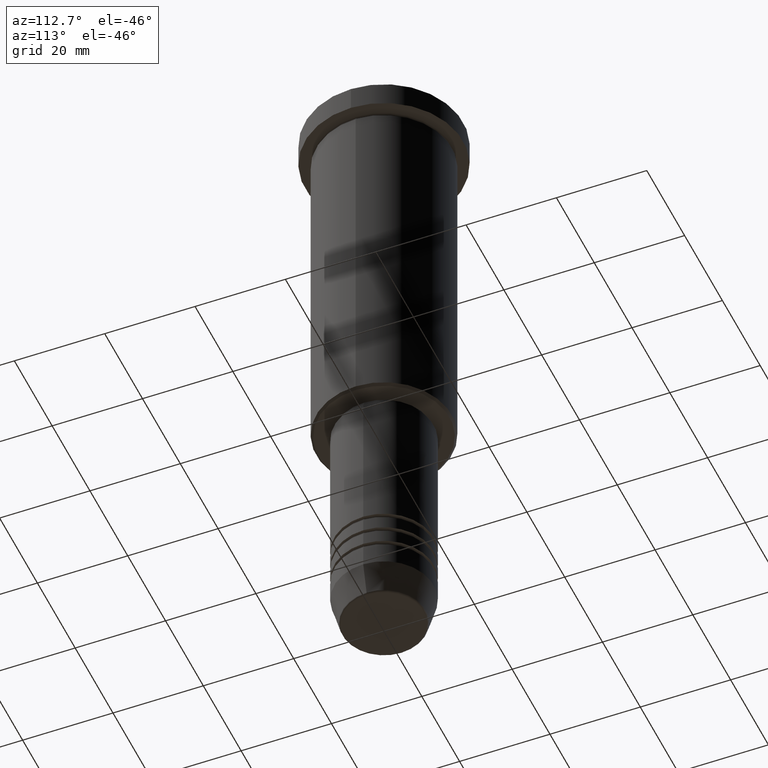
[diagram: clean part render]
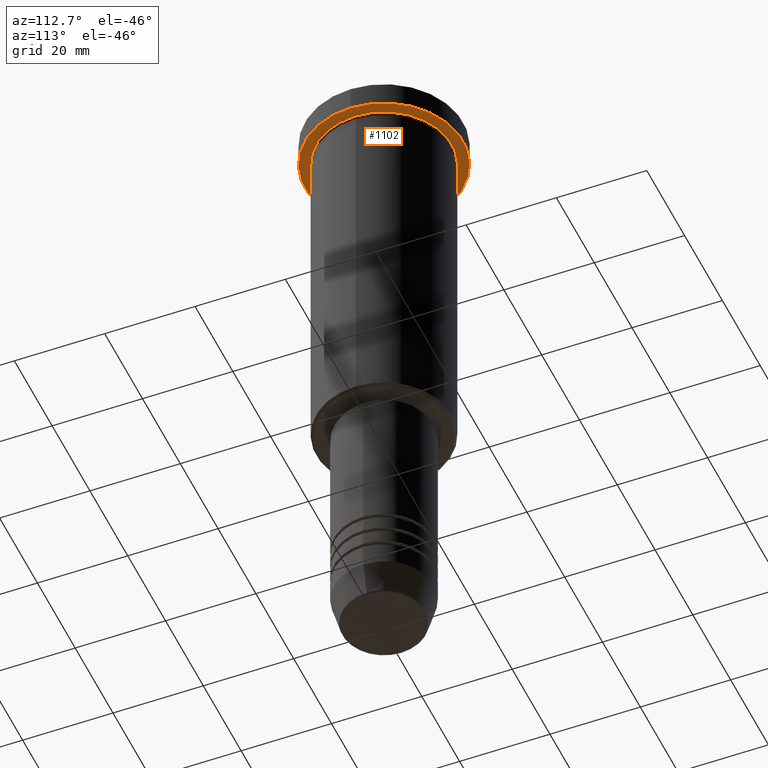
[diagram: same view with one face highlighted and labeled with its STEP entity id]
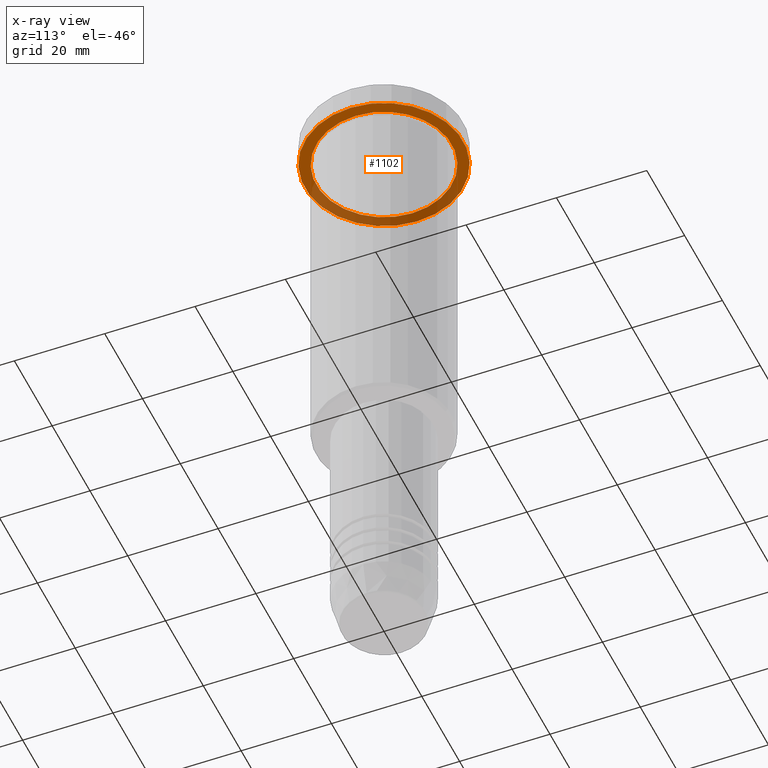
[diagram: x-ray of the same camera — body ghosted, the highlighted face saturated]
A machine part, auxiliary view. The second image highlights one B-rep face of the part: STEP entity #1102.
The next image is the same camera in x-ray: the body ghosted, the highlighted face saturated — about 36% of this face is hidden behind the body in this view.
In plain terms, the highlighted planar face has unit normal (0, 0, -1).
Its self-contained STEP definition (entity closure, byte-faithful):
#3 = EDGE_LOOP ( 'NONE', ( #99, #279 ) ) ;
#5 = CARTESIAN_POINT ( 'NONE',  ( 0.000000000000000000, 0.000000000000000000, -5.999999999999995559 ) ) ;
#42 = DIRECTION ( 'NONE',  ( -0.000000000000000000, -0.000000000000000000, 1.000000000000000000 ) ) ;
#51 = CARTESIAN_POINT ( 'NONE',  ( 0.000000000000000000, 0.000000000000000000, -5.999999999999995559 ) ) ;
#99 = ORIENTED_EDGE ( 'NONE', *, *, #320, .F. ) ;
#103 = EDGE_CURVE ( 'NONE', #629, #1132, #764, .T. ) ;
#114 = AXIS2_PLACEMENT_3D ( 'NONE', #51, #691, #703 ) ;
#142 = PLANE ( 'NONE',  #361 ) ;
#168 = CARTESIAN_POINT ( 'NONE',  ( 17.50000000000000000, 0.000000000000000000, -5.999999999999995559 ) ) ;
#232 = CIRCLE ( 'NONE', #454, 17.50000000000000000 ) ;
#277 = DIRECTION ( 'NONE',  ( -0.000000000000000000, -0.000000000000000000, 1.000000000000000000 ) ) ;
#279 = ORIENTED_EDGE ( 'NONE', *, *, #383, .F. ) ;
#320 = EDGE_CURVE ( 'NONE', #431, #812, #1154, .T. ) ;
#361 = AXIS2_PLACEMENT_3D ( 'NONE', #813, #799, #521 ) ;
#383 = EDGE_CURVE ( 'NONE', #812, #431, #232, .T. ) ;
#399 = CIRCLE ( 'NONE', #973, 15.00000000000000000 ) ;
#420 = EDGE_CURVE ( 'NONE', #1132, #629, #399, .T. ) ;
#431 = VERTEX_POINT ( 'NONE', #168 ) ;
#443 = CARTESIAN_POINT ( 'NONE',  ( 15.00000000000000000, 1.836970198721029589E-15, -5.999999999999994671 ) ) ;
#454 = AXIS2_PLACEMENT_3D ( 'NONE', #871, #42, #790 ) ;
#521 = DIRECTION ( 'NONE',  ( -1.000000000000000000, 0.000000000000000000, -0.000000000000000000 ) ) ;
#610 = CARTESIAN_POINT ( 'NONE',  ( -15.00000000000000000, 0.000000000000000000, -5.999999999999994671 ) ) ;
#629 = VERTEX_POINT ( 'NONE', #610 ) ;
#637 = ORIENTED_EDGE ( 'NONE', *, *, #103, .T. ) ;
#639 = DIRECTION ( 'NONE',  ( -1.000000000000000000, 0.000000000000000000, 0.000000000000000000 ) ) ;
#652 = ORIENTED_EDGE ( 'NONE', *, *, #420, .T. ) ;
#664 = AXIS2_PLACEMENT_3D ( 'NONE', #1170, #738, #730 ) ;
#691 = DIRECTION ( 'NONE',  ( -0.000000000000000000, -0.000000000000000000, 1.000000000000000000 ) ) ;
#703 = DIRECTION ( 'NONE',  ( -1.000000000000000000, 0.000000000000000000, 0.000000000000000000 ) ) ;
#730 = DIRECTION ( 'NONE',  ( 1.000000000000000000, 0.000000000000000000, 0.000000000000000000 ) ) ;
#738 = DIRECTION ( 'NONE',  ( -0.000000000000000000, -0.000000000000000000, 1.000000000000000000 ) ) ;
#764 = CIRCLE ( 'NONE', #114, 15.00000000000000000 ) ;
#790 = DIRECTION ( 'NONE',  ( 1.000000000000000000, 0.000000000000000000, 0.000000000000000000 ) ) ;
#796 = FACE_OUTER_BOUND ( 'NONE', #3, .T. ) ;
#799 = DIRECTION ( 'NONE',  ( 0.000000000000000000, 0.000000000000000000, -1.000000000000000000 ) ) ;
#812 = VERTEX_POINT ( 'NONE', #1182 ) ;
#813 = CARTESIAN_POINT ( 'NONE',  ( 0.000000000000000000, 17.50000000000000000, -5.999999999999995559 ) ) ;
#871 = CARTESIAN_POINT ( 'NONE',  ( 0.000000000000000000, 0.000000000000000000, -5.999999999999995559 ) ) ;
#895 = FACE_BOUND ( 'NONE', #1027, .T. ) ;
#973 = AXIS2_PLACEMENT_3D ( 'NONE', #5, #277, #639 ) ;
#1027 = EDGE_LOOP ( 'NONE', ( #637, #652 ) ) ;
#1102 = ADVANCED_FACE ( 'NONE', ( #895, #796 ), #142, .T. ) ;
#1132 = VERTEX_POINT ( 'NONE', #443 ) ;
#1154 = CIRCLE ( 'NONE', #664, 17.50000000000000000 ) ;
#1170 = CARTESIAN_POINT ( 'NONE',  ( 0.000000000000000000, 0.000000000000000000, -5.999999999999995559 ) ) ;
#1182 = CARTESIAN_POINT ( 'NONE',  ( -17.50000000000000000, 2.143131898507868248E-15, -5.999999999999995559 ) ) ;